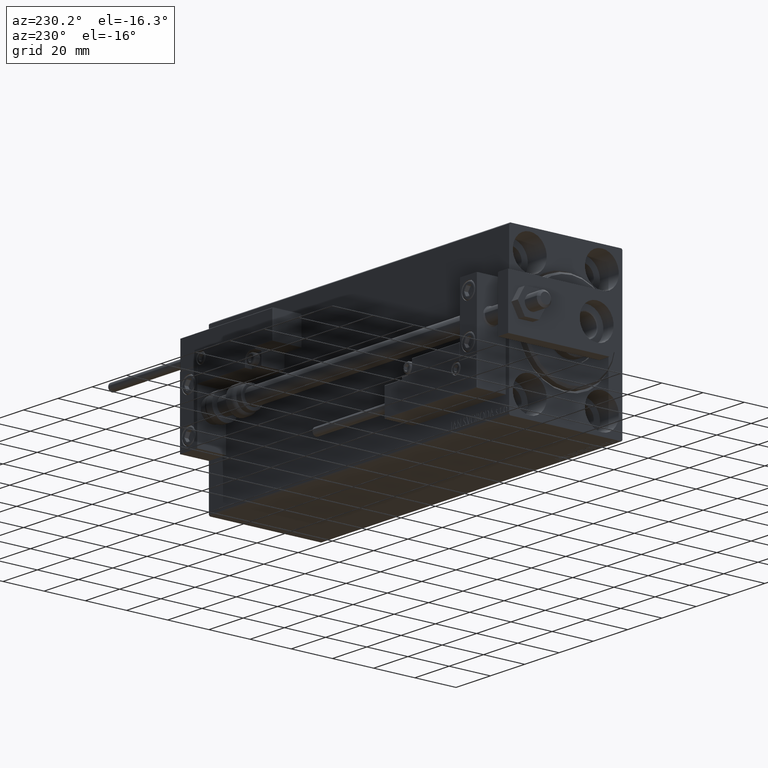
[diagram: clean part render]
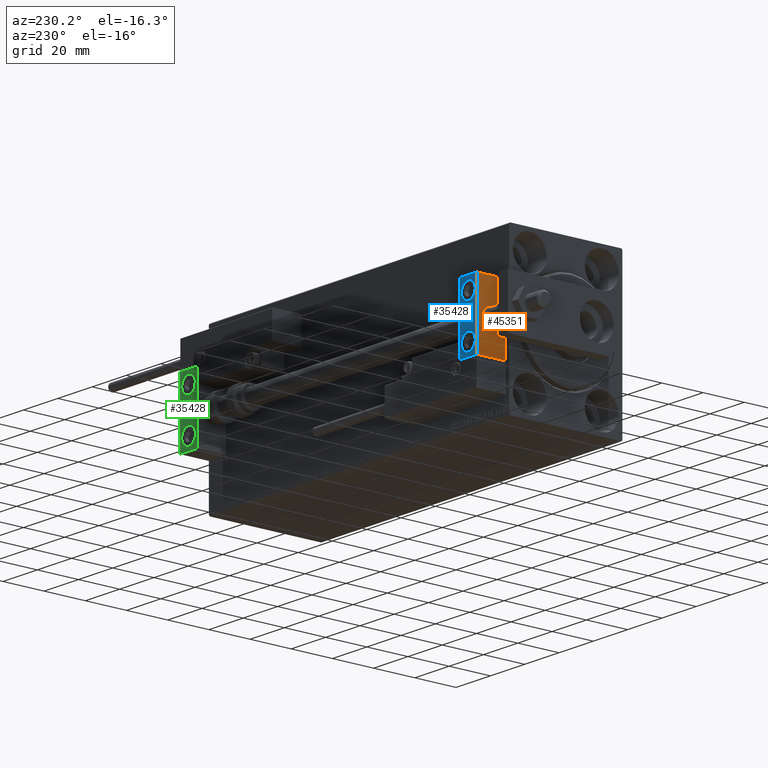
[diagram: same view with three faces highlighted in distinct colors, each labeled with its STEP entity id]
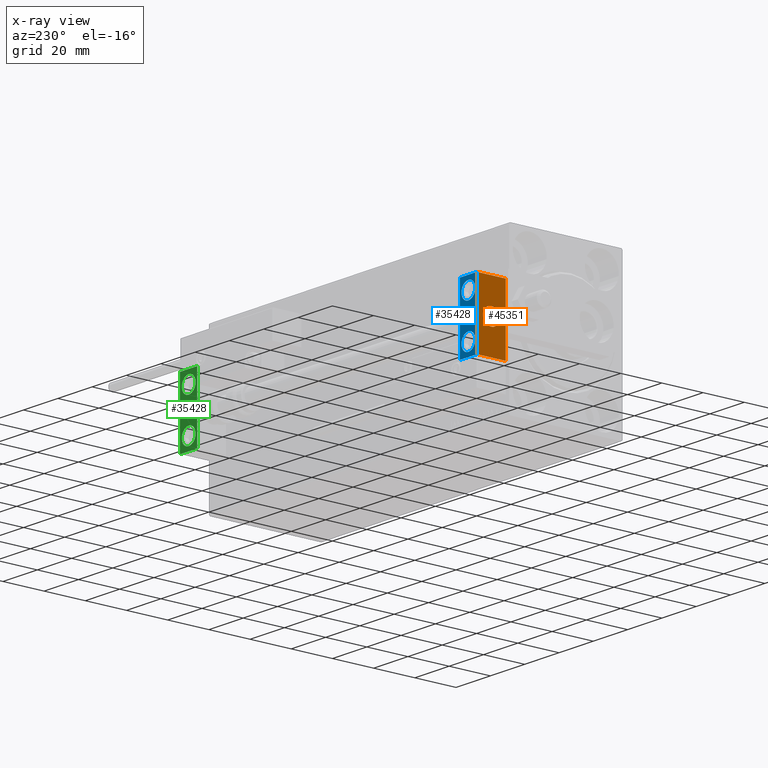
[diagram: x-ray of the same camera — body ghosted, the three highlighted faces saturated]
A machine part, auxiliary view with three faces highlighted in distinct colors.
The next image is the same camera in x-ray (body ghosted, the three faces saturated) — at least one of them is partly hidden behind the body in this view.
Their STEP definitions:

[orange] entity #45351 — the highlighted planar face has unit normal (1, 0, -0).
#459 = VERTEX_POINT ( 'NONE', #21824 ) ;
#1778 = DIRECTION ( 'NONE',  ( 0.000000000000000000, 0.000000000000000000, 1.000000000000000000 ) ) ;
#4904 = LINE ( 'NONE', #46326, #27421 ) ;
#7285 = ORIENTED_EDGE ( 'NONE', *, *, #13883, .F. ) ;
#8317 = EDGE_CURVE ( 'NONE', #13614, #46751, #26460, .T. ) ;
#8584 = EDGE_CURVE ( 'NONE', #46751, #13614, #44220, .T. ) ;
#9196 = FACE_BOUND ( 'NONE', #43980, .T. ) ;
#10337 = VERTEX_POINT ( 'NONE', #20716 ) ;
#12862 = VERTEX_POINT ( 'NONE', #24208 ) ;
#13614 = VERTEX_POINT ( 'NONE', #19906 ) ;
#13883 = EDGE_CURVE ( 'NONE', #459, #10337, #35503, .T. ) ;
#14054 = DIRECTION ( 'NONE',  ( -1.000000000000000000, 0.000000000000000000, 0.000000000000000000 ) ) ;
#19387 = ORIENTED_EDGE ( 'NONE', *, *, #19918, .F. ) ;
#19906 = CARTESIAN_POINT ( 'NONE',  ( 10.00000000000000000, 0.000000000000000000, 4.000000000000000000 ) ) ;
#19918 = EDGE_CURVE ( 'NONE', #26459, #459, #31303, .T. ) ;
#20347 = CARTESIAN_POINT ( 'NONE',  ( 10.00000000000000000, 7.000000000000000000, -16.00000000000000711 ) ) ;
#20716 = CARTESIAN_POINT ( 'NONE',  ( 10.00000000000000000, -7.000000000000000000, -16.00000000000000711 ) ) ;
#21303 = DIRECTION ( 'NONE',  ( -1.000000000000000000, 0.000000000000000000, -0.000000000000000000 ) ) ;
#21824 = CARTESIAN_POINT ( 'NONE',  ( 10.00000000000000000, 7.000000000000000000, -16.00000000000000711 ) ) ;
#24208 = CARTESIAN_POINT ( 'NONE',  ( 10.00000000000000000, -7.000000000000000000, 15.99999999999999289 ) ) ;
#24351 = ORIENTED_EDGE ( 'NONE', *, *, #8317, .T. ) ;
#24857 = DIRECTION ( 'NONE',  ( -0.000000000000000000, 0.000000000000000000, 1.000000000000000000 ) ) ;
#25249 = CARTESIAN_POINT ( 'NONE',  ( 10.00000000000000000, 0.000000000000000000, 0.000000000000000000 ) ) ;
#25684 = CARTESIAN_POINT ( 'NONE',  ( 10.00000000000000000, 0.000000000000000000, 0.000000000000000000 ) ) ;
#26201 = VECTOR ( 'NONE', #30370, 1000.000000000000000 ) ;
#26307 = CARTESIAN_POINT ( 'NONE',  ( 10.00000000000000000, 4.898587196589412829E-16, -4.000000000000000000 ) ) ;
#26459 = VERTEX_POINT ( 'NONE', #32358 ) ;
#26460 = CIRCLE ( 'NONE', #45017, 4.000000000000000000 ) ;
#27421 = VECTOR ( 'NONE', #38995, 1000.000000000000000 ) ;
#27516 = CARTESIAN_POINT ( 'NONE',  ( 10.00000000000000000, 7.000000000000000000, 15.99999999999999289 ) ) ;
#27901 = ORIENTED_EDGE ( 'NONE', *, *, #40093, .T. ) ;
#28402 = CARTESIAN_POINT ( 'NONE',  ( 10.00000000000000000, 0.000000000000000000, 0.000000000000000000 ) ) ;
#28729 = DIRECTION ( 'NONE',  ( 0.000000000000000000, 0.000000000000000000, 1.000000000000000000 ) ) ;
#29153 = FACE_OUTER_BOUND ( 'NONE', #30120, .T. ) ;
#29292 = DIRECTION ( 'NONE',  ( -1.000000000000000000, 0.000000000000000000, 0.000000000000000000 ) ) ;
#30120 = EDGE_LOOP ( 'NONE', ( #46939, #7285, #19387, #27901 ) ) ;
#30273 = LINE ( 'NONE', #30521, #44529 ) ;
#30370 = DIRECTION ( 'NONE',  ( 0.000000000000000000, 0.000000000000000000, -1.000000000000000000 ) ) ;
#30521 = CARTESIAN_POINT ( 'NONE',  ( 10.00000000000000000, -7.000000000000000000, 15.99999999999999289 ) ) ;
#31303 = LINE ( 'NONE', #27516, #26201 ) ;
#32358 = CARTESIAN_POINT ( 'NONE',  ( 10.00000000000000000, 7.000000000000000000, 15.99999999999999289 ) ) ;
#34044 = AXIS2_PLACEMENT_3D ( 'NONE', #28402, #21303, #24857 ) ;
#35503 = LINE ( 'NONE', #20347, #47531 ) ;
#35737 = DIRECTION ( 'NONE',  ( 0.000000000000000000, -1.000000000000000000, 0.000000000000000000 ) ) ;
#38995 = DIRECTION ( 'NONE',  ( 0.000000000000000000, -1.000000000000000000, 0.000000000000000000 ) ) ;
#40093 = EDGE_CURVE ( 'NONE', #26459, #12862, #4904, .T. ) ;
#40502 = PLANE ( 'NONE',  #34044 ) ;
#43980 = EDGE_LOOP ( 'NONE', ( #24351, #48607 ) ) ;
#44220 = CIRCLE ( 'NONE', #47464, 4.000000000000000000 ) ;
#44529 = VECTOR ( 'NONE', #45425, 1000.000000000000000 ) ;
#45017 = AXIS2_PLACEMENT_3D ( 'NONE', #25249, #29292, #1778 ) ;
#45351 = ADVANCED_FACE ( 'NONE', ( #9196, #29153 ), #40502, .F. ) ;
#45425 = DIRECTION ( 'NONE',  ( 0.000000000000000000, 0.000000000000000000, -1.000000000000000000 ) ) ;
#45751 = EDGE_CURVE ( 'NONE', #12862, #10337, #30273, .T. ) ;
#46326 = CARTESIAN_POINT ( 'NONE',  ( 10.00000000000000000, 7.000000000000000000, 15.99999999999999289 ) ) ;
#46751 = VERTEX_POINT ( 'NONE', #26307 ) ;
#46939 = ORIENTED_EDGE ( 'NONE', *, *, #45751, .T. ) ;
#47464 = AXIS2_PLACEMENT_3D ( 'NONE', #25684, #14054, #28729 ) ;
#47531 = VECTOR ( 'NONE', #35737, 1000.000000000000000 ) ;
#48607 = ORIENTED_EDGE ( 'NONE', *, *, #8584, .T. ) ;

[blue] entity #35428 — the highlighted planar face has unit normal (-0, 1, -0).
#302 = FACE_BOUND ( 'NONE', #46319, .T. ) ;
#459 = VERTEX_POINT ( 'NONE', #21824 ) ;
#1496 = CARTESIAN_POINT ( 'NONE',  ( 5.000000000000000888, 6.999999999999999112, -10.00000000000000178 ) ) ;
#2134 = VERTEX_POINT ( 'NONE', #40879 ) ;
#2490 = EDGE_CURVE ( 'NONE', #459, #24286, #7707, .T. ) ;
#2675 = DIRECTION ( 'NONE',  ( 0.000000000000000000, 0.000000000000000000, 1.000000000000000000 ) ) ;
#4080 = FACE_OUTER_BOUND ( 'NONE', #37331, .T. ) ;
#4166 = DIRECTION ( 'NONE',  ( 0.000000000000000000, 0.000000000000000000, 1.000000000000000000 ) ) ;
#7707 = LINE ( 'NONE', #15290, #37550 ) ;
#7975 = CARTESIAN_POINT ( 'NONE',  ( 0.000000000000000000, 7.000000000000000000, -16.00000000000000711 ) ) ;
#8450 = DIRECTION ( 'NONE',  ( 0.000000000000000000, 1.000000000000000000, -6.065466699219605527E-17 ) ) ;
#8505 = EDGE_CURVE ( 'NONE', #26459, #41415, #16358, .T. ) ;
#8610 = LINE ( 'NONE', #42719, #34542 ) ;
#9314 = DIRECTION ( 'NONE',  ( 0.000000000000000000, 1.000000000000000000, -6.065466699219605527E-17 ) ) ;
#10696 = CARTESIAN_POINT ( 'NONE',  ( 5.000000000000001776, 7.000000000000000888, 6.000000000000000888 ) ) ;
#11529 = ORIENTED_EDGE ( 'NONE', *, *, #19918, .T. ) ;
#11887 = DIRECTION ( 'NONE',  ( 0.000000000000000000, -0.000000000000000000, 1.000000000000000000 ) ) ;
#12324 = VERTEX_POINT ( 'NONE', #17300 ) ;
#12906 = EDGE_CURVE ( 'NONE', #42929, #12324, #27321, .T. ) ;
#13776 = AXIS2_PLACEMENT_3D ( 'NONE', #15283, #8450, #4166 ) ;
#14305 = ORIENTED_EDGE ( 'NONE', *, *, #41939, .F. ) ;
#15283 = CARTESIAN_POINT ( 'NONE',  ( 5.000000000000000888, 6.999999999999999112, -10.00000000000000178 ) ) ;
#15290 = CARTESIAN_POINT ( 'NONE',  ( 10.00000000000000000, 7.000000000000000000, -16.00000000000000711 ) ) ;
#16203 = DIRECTION ( 'NONE',  ( 1.848892746611746419E-32, -1.000000000000000000, 6.616381192988677562E-17 ) ) ;
#16358 = LINE ( 'NONE', #31766, #42641 ) ;
#17124 = CARTESIAN_POINT ( 'NONE',  ( 5.000000000000000888, 7.000000000000000888, 10.00000000000000178 ) ) ;
#17300 = CARTESIAN_POINT ( 'NONE',  ( 5.000000000000000888, 7.000000000000000888, 14.00000000000000178 ) ) ;
#17635 = DIRECTION ( 'NONE',  ( 1.848892746611746419E-32, -1.000000000000000000, 6.616381192988677562E-17 ) ) ;
#19918 = EDGE_CURVE ( 'NONE', #26459, #459, #31303, .T. ) ;
#20502 = ORIENTED_EDGE ( 'NONE', *, *, #8505, .F. ) ;
#21289 = EDGE_CURVE ( 'NONE', #44484, #2134, #45586, .T. ) ;
#21663 = DIRECTION ( 'NONE',  ( 0.000000000000000000, 0.000000000000000000, 1.000000000000000000 ) ) ;
#21824 = CARTESIAN_POINT ( 'NONE',  ( 10.00000000000000000, 7.000000000000000000, -16.00000000000000711 ) ) ;
#22758 = ORIENTED_EDGE ( 'NONE', *, *, #35364, .F. ) ;
#23273 = FACE_BOUND ( 'NONE', #34395, .T. ) ;
#23539 = CARTESIAN_POINT ( 'NONE',  ( 5.000000000000000888, 7.000000000000000888, 10.00000000000000178 ) ) ;
#24286 = VERTEX_POINT ( 'NONE', #7975 ) ;
#24398 = ORIENTED_EDGE ( 'NONE', *, *, #21289, .F. ) ;
#25886 = ORIENTED_EDGE ( 'NONE', *, *, #2490, .T. ) ;
#26201 = VECTOR ( 'NONE', #30370, 1000.000000000000000 ) ;
#26459 = VERTEX_POINT ( 'NONE', #32358 ) ;
#27321 = CIRCLE ( 'NONE', #28143, 4.000000000000000000 ) ;
#27516 = CARTESIAN_POINT ( 'NONE',  ( 10.00000000000000000, 7.000000000000000000, 15.99999999999999289 ) ) ;
#27529 = CARTESIAN_POINT ( 'NONE',  ( 0.000000000000000000, 7.000000000000000000, 15.99999999999999289 ) ) ;
#28143 = AXIS2_PLACEMENT_3D ( 'NONE', #17124, #17635, #21663 ) ;
#30050 = ORIENTED_EDGE ( 'NONE', *, *, #12906, .T. ) ;
#30164 = AXIS2_PLACEMENT_3D ( 'NONE', #1496, #9314, #2675 ) ;
#30370 = DIRECTION ( 'NONE',  ( 0.000000000000000000, 0.000000000000000000, -1.000000000000000000 ) ) ;
#31303 = LINE ( 'NONE', #27516, #26201 ) ;
#31459 = AXIS2_PLACEMENT_3D ( 'NONE', #23539, #16203, #34650 ) ;
#31606 = DIRECTION ( 'NONE',  ( 0.000000000000000000, 0.000000000000000000, -1.000000000000000000 ) ) ;
#31766 = CARTESIAN_POINT ( 'NONE',  ( 10.00000000000000000, 7.000000000000000000, 15.99999999999999289 ) ) ;
#32358 = CARTESIAN_POINT ( 'NONE',  ( 10.00000000000000000, 7.000000000000000000, 15.99999999999999289 ) ) ;
#33878 = CIRCLE ( 'NONE', #31459, 4.000000000000000000 ) ;
#34395 = EDGE_LOOP ( 'NONE', ( #44691, #30050 ) ) ;
#34542 = VECTOR ( 'NONE', #31606, 1000.000000000000000 ) ;
#34636 = PLANE ( 'NONE',  #36122 ) ;
#34650 = DIRECTION ( 'NONE',  ( 0.000000000000000000, 0.000000000000000000, 1.000000000000000000 ) ) ;
#35364 = EDGE_CURVE ( 'NONE', #41415, #24286, #8610, .T. ) ;
#35410 = DIRECTION ( 'NONE',  ( -1.000000000000000000, -0.000000000000000000, -0.000000000000000000 ) ) ;
#35428 = ADVANCED_FACE ( 'NONE', ( #4080, #302, #23273 ), #34636, .T. ) ;
#36122 = AXIS2_PLACEMENT_3D ( 'NONE', #46504, #43453, #11887 ) ;
#36310 = CIRCLE ( 'NONE', #13776, 4.000000000000000888 ) ;
#37331 = EDGE_LOOP ( 'NONE', ( #22758, #20502, #11529, #25886 ) ) ;
#37550 = VECTOR ( 'NONE', #35410, 1000.000000000000000 ) ;
#39805 = EDGE_CURVE ( 'NONE', #12324, #42929, #33878, .T. ) ;
#40879 = CARTESIAN_POINT ( 'NONE',  ( 5.000000000000000888, 6.999999999999999112, -6.000000000000000888 ) ) ;
#40929 = CARTESIAN_POINT ( 'NONE',  ( 5.000000000000001776, 6.999999999999999112, -14.00000000000000178 ) ) ;
#41415 = VERTEX_POINT ( 'NONE', #27529 ) ;
#41939 = EDGE_CURVE ( 'NONE', #2134, #44484, #36310, .T. ) ;
#42641 = VECTOR ( 'NONE', #46418, 1000.000000000000000 ) ;
#42719 = CARTESIAN_POINT ( 'NONE',  ( 0.000000000000000000, 7.000000000000000000, 15.99999999999999289 ) ) ;
#42929 = VERTEX_POINT ( 'NONE', #10696 ) ;
#43453 = DIRECTION ( 'NONE',  ( -0.000000000000000000, 1.000000000000000000, 0.000000000000000000 ) ) ;
#44484 = VERTEX_POINT ( 'NONE', #40929 ) ;
#44691 = ORIENTED_EDGE ( 'NONE', *, *, #39805, .T. ) ;
#45586 = CIRCLE ( 'NONE', #30164, 4.000000000000000888 ) ;
#46319 = EDGE_LOOP ( 'NONE', ( #14305, #24398 ) ) ;
#46418 = DIRECTION ( 'NONE',  ( -1.000000000000000000, -0.000000000000000000, -0.000000000000000000 ) ) ;
#46504 = CARTESIAN_POINT ( 'NONE',  ( 10.00000000000000000, 7.000000000000000000, 15.99999999999999289 ) ) ;

[green] entity #35428 — the highlighted planar face has unit normal (0, 1, 0).
#302 = FACE_BOUND ( 'NONE', #46319, .T. ) ;
#459 = VERTEX_POINT ( 'NONE', #21824 ) ;
#1496 = CARTESIAN_POINT ( 'NONE',  ( 5.000000000000000888, 6.999999999999999112, -10.00000000000000178 ) ) ;
#2134 = VERTEX_POINT ( 'NONE', #40879 ) ;
#2490 = EDGE_CURVE ( 'NONE', #459, #24286, #7707, .T. ) ;
#2675 = DIRECTION ( 'NONE',  ( 0.000000000000000000, 0.000000000000000000, 1.000000000000000000 ) ) ;
#4080 = FACE_OUTER_BOUND ( 'NONE', #37331, .T. ) ;
#4166 = DIRECTION ( 'NONE',  ( 0.000000000000000000, 0.000000000000000000, 1.000000000000000000 ) ) ;
#7707 = LINE ( 'NONE', #15290, #37550 ) ;
#7975 = CARTESIAN_POINT ( 'NONE',  ( 0.000000000000000000, 7.000000000000000000, -16.00000000000000711 ) ) ;
#8450 = DIRECTION ( 'NONE',  ( 0.000000000000000000, 1.000000000000000000, -6.065466699219605527E-17 ) ) ;
#8505 = EDGE_CURVE ( 'NONE', #26459, #41415, #16358, .T. ) ;
#8610 = LINE ( 'NONE', #42719, #34542 ) ;
#9314 = DIRECTION ( 'NONE',  ( 0.000000000000000000, 1.000000000000000000, -6.065466699219605527E-17 ) ) ;
#10696 = CARTESIAN_POINT ( 'NONE',  ( 5.000000000000001776, 7.000000000000000888, 6.000000000000000888 ) ) ;
#11529 = ORIENTED_EDGE ( 'NONE', *, *, #19918, .T. ) ;
#11887 = DIRECTION ( 'NONE',  ( 0.000000000000000000, -0.000000000000000000, 1.000000000000000000 ) ) ;
#12324 = VERTEX_POINT ( 'NONE', #17300 ) ;
#12906 = EDGE_CURVE ( 'NONE', #42929, #12324, #27321, .T. ) ;
#13776 = AXIS2_PLACEMENT_3D ( 'NONE', #15283, #8450, #4166 ) ;
#14305 = ORIENTED_EDGE ( 'NONE', *, *, #41939, .F. ) ;
#15283 = CARTESIAN_POINT ( 'NONE',  ( 5.000000000000000888, 6.999999999999999112, -10.00000000000000178 ) ) ;
#15290 = CARTESIAN_POINT ( 'NONE',  ( 10.00000000000000000, 7.000000000000000000, -16.00000000000000711 ) ) ;
#16203 = DIRECTION ( 'NONE',  ( 1.848892746611746419E-32, -1.000000000000000000, 6.616381192988677562E-17 ) ) ;
#16358 = LINE ( 'NONE', #31766, #42641 ) ;
#17124 = CARTESIAN_POINT ( 'NONE',  ( 5.000000000000000888, 7.000000000000000888, 10.00000000000000178 ) ) ;
#17300 = CARTESIAN_POINT ( 'NONE',  ( 5.000000000000000888, 7.000000000000000888, 14.00000000000000178 ) ) ;
#17635 = DIRECTION ( 'NONE',  ( 1.848892746611746419E-32, -1.000000000000000000, 6.616381192988677562E-17 ) ) ;
#19918 = EDGE_CURVE ( 'NONE', #26459, #459, #31303, .T. ) ;
#20502 = ORIENTED_EDGE ( 'NONE', *, *, #8505, .F. ) ;
#21289 = EDGE_CURVE ( 'NONE', #44484, #2134, #45586, .T. ) ;
#21663 = DIRECTION ( 'NONE',  ( 0.000000000000000000, 0.000000000000000000, 1.000000000000000000 ) ) ;
#21824 = CARTESIAN_POINT ( 'NONE',  ( 10.00000000000000000, 7.000000000000000000, -16.00000000000000711 ) ) ;
#22758 = ORIENTED_EDGE ( 'NONE', *, *, #35364, .F. ) ;
#23273 = FACE_BOUND ( 'NONE', #34395, .T. ) ;
#23539 = CARTESIAN_POINT ( 'NONE',  ( 5.000000000000000888, 7.000000000000000888, 10.00000000000000178 ) ) ;
#24286 = VERTEX_POINT ( 'NONE', #7975 ) ;
#24398 = ORIENTED_EDGE ( 'NONE', *, *, #21289, .F. ) ;
#25886 = ORIENTED_EDGE ( 'NONE', *, *, #2490, .T. ) ;
#26201 = VECTOR ( 'NONE', #30370, 1000.000000000000000 ) ;
#26459 = VERTEX_POINT ( 'NONE', #32358 ) ;
#27321 = CIRCLE ( 'NONE', #28143, 4.000000000000000000 ) ;
#27516 = CARTESIAN_POINT ( 'NONE',  ( 10.00000000000000000, 7.000000000000000000, 15.99999999999999289 ) ) ;
#27529 = CARTESIAN_POINT ( 'NONE',  ( 0.000000000000000000, 7.000000000000000000, 15.99999999999999289 ) ) ;
#28143 = AXIS2_PLACEMENT_3D ( 'NONE', #17124, #17635, #21663 ) ;
#30050 = ORIENTED_EDGE ( 'NONE', *, *, #12906, .T. ) ;
#30164 = AXIS2_PLACEMENT_3D ( 'NONE', #1496, #9314, #2675 ) ;
#30370 = DIRECTION ( 'NONE',  ( 0.000000000000000000, 0.000000000000000000, -1.000000000000000000 ) ) ;
#31303 = LINE ( 'NONE', #27516, #26201 ) ;
#31459 = AXIS2_PLACEMENT_3D ( 'NONE', #23539, #16203, #34650 ) ;
#31606 = DIRECTION ( 'NONE',  ( 0.000000000000000000, 0.000000000000000000, -1.000000000000000000 ) ) ;
#31766 = CARTESIAN_POINT ( 'NONE',  ( 10.00000000000000000, 7.000000000000000000, 15.99999999999999289 ) ) ;
#32358 = CARTESIAN_POINT ( 'NONE',  ( 10.00000000000000000, 7.000000000000000000, 15.99999999999999289 ) ) ;
#33878 = CIRCLE ( 'NONE', #31459, 4.000000000000000000 ) ;
#34395 = EDGE_LOOP ( 'NONE', ( #44691, #30050 ) ) ;
#34542 = VECTOR ( 'NONE', #31606, 1000.000000000000000 ) ;
#34636 = PLANE ( 'NONE',  #36122 ) ;
#34650 = DIRECTION ( 'NONE',  ( 0.000000000000000000, 0.000000000000000000, 1.000000000000000000 ) ) ;
#35364 = EDGE_CURVE ( 'NONE', #41415, #24286, #8610, .T. ) ;
#35410 = DIRECTION ( 'NONE',  ( -1.000000000000000000, -0.000000000000000000, -0.000000000000000000 ) ) ;
#35428 = ADVANCED_FACE ( 'NONE', ( #4080, #302, #23273 ), #34636, .T. ) ;
#36122 = AXIS2_PLACEMENT_3D ( 'NONE', #46504, #43453, #11887 ) ;
#36310 = CIRCLE ( 'NONE', #13776, 4.000000000000000888 ) ;
#37331 = EDGE_LOOP ( 'NONE', ( #22758, #20502, #11529, #25886 ) ) ;
#37550 = VECTOR ( 'NONE', #35410, 1000.000000000000000 ) ;
#39805 = EDGE_CURVE ( 'NONE', #12324, #42929, #33878, .T. ) ;
#40879 = CARTESIAN_POINT ( 'NONE',  ( 5.000000000000000888, 6.999999999999999112, -6.000000000000000888 ) ) ;
#40929 = CARTESIAN_POINT ( 'NONE',  ( 5.000000000000001776, 6.999999999999999112, -14.00000000000000178 ) ) ;
#41415 = VERTEX_POINT ( 'NONE', #27529 ) ;
#41939 = EDGE_CURVE ( 'NONE', #2134, #44484, #36310, .T. ) ;
#42641 = VECTOR ( 'NONE', #46418, 1000.000000000000000 ) ;
#42719 = CARTESIAN_POINT ( 'NONE',  ( 0.000000000000000000, 7.000000000000000000, 15.99999999999999289 ) ) ;
#42929 = VERTEX_POINT ( 'NONE', #10696 ) ;
#43453 = DIRECTION ( 'NONE',  ( -0.000000000000000000, 1.000000000000000000, 0.000000000000000000 ) ) ;
#44484 = VERTEX_POINT ( 'NONE', #40929 ) ;
#44691 = ORIENTED_EDGE ( 'NONE', *, *, #39805, .T. ) ;
#45586 = CIRCLE ( 'NONE', #30164, 4.000000000000000888 ) ;
#46319 = EDGE_LOOP ( 'NONE', ( #14305, #24398 ) ) ;
#46418 = DIRECTION ( 'NONE',  ( -1.000000000000000000, -0.000000000000000000, -0.000000000000000000 ) ) ;
#46504 = CARTESIAN_POINT ( 'NONE',  ( 10.00000000000000000, 7.000000000000000000, 15.99999999999999289 ) ) ;